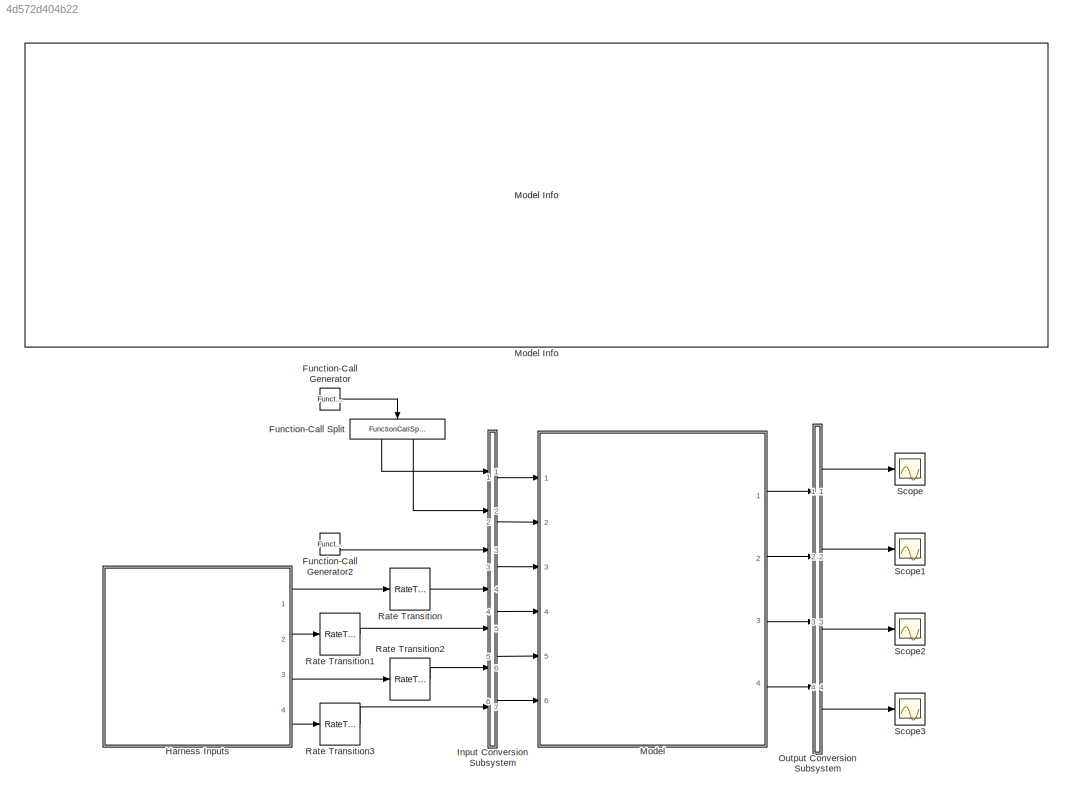
MODEL slx_4d572d404b22
KIND model
CONFIG AbsTol = auto
CONFIG EnableMultiTasking = on
CONFIG FixedStep = 0.1
CONFIG InitFcn = mbd_s32k_as_consistency_checks(bdroot(gcs));
CONFIG MaxStep = auto
CONFIG MinStep = auto
CONFIG RelTol = 1e-3
CONFIG SampleTimeConstraint = Unconstrained
CONFIG Solver = FixedStepDiscrete
CONFIG SolverName = FixedStepDiscrete
CONFIG StartTime = 0.0
CONFIG StopTime = 200
BLOCK [Reference] Function-Call Generator  REF=simulink/Ports &
Subsystems/Function-Call
Generator
  Ports = [0, 1]
  SourceBlock = simulink/Ports &\nSubsystems/Function-Call\nGenerator
  SourceProductBaseCode = SL
  SourceProductName = Simulink
  SourceType = Function-Call Generator
BLOCK [Reference] Function-Call Generator2  REF=simulink/Ports &
Subsystems/Function-Call
Generator
  Ports = [0, 1]
  SourceBlock = simulink/Ports &\nSubsystems/Function-Call\nGenerator
  SourceProductBaseCode = SL
  SourceProductName = Simulink
  SourceType = Function-Call Generator
BLOCK [FunctionCallSplit] Function-Call Split
  IconShape = distinctive
  NumOutputPorts = 2
  Ports = [1, 2]
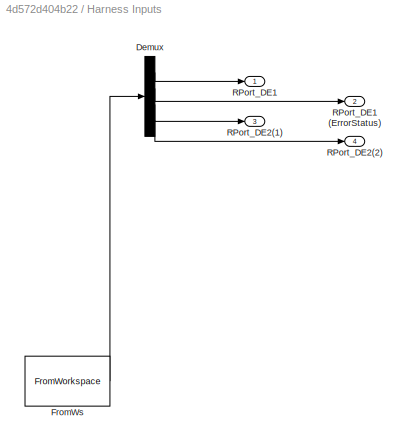
BLOCK [SubSystem] Harness Inputs
  ClipboardFcn = sigbuilder_block('clipboard');
  CloseFcn = sigbuilder_block('close');
  ContinueFcn = sigbuilder_block('continue');
  CopyFcn = sigbuilder_block('copy');
  DeleteFcn = sigbuilder_block('delete');
  LoadFcn = sigbuilder_block('load');
  MaskHideContents = on
  ModelCloseFcn = sigbuilder_block('modelClose');
  NameChangeFcn = sigbuilder_block('namechange');
  OpenFcn = sigbuilder_block('open',[50 50 520 400 ]);
  PauseFcn = sigbuilder_block('pause');
  Ports = [0, 4]
  PreSaveFcn = sigbuilder_block('preSave');
  RequestExecContextInheritance = off
  StartFcn = sigbuilder_block('start');
  StopFcn = sigbuilder_block('stop');
  Tag = STV Subsys
BLOCK [Demux] Harness Inputs/Demux
  Ports = [1, 4]
  Tag = STV Demux
BLOCK [FromWorkspace] Harness Inputs/FromWs
  SampleTime = 0
  Tag = STV FromWs
  VariableName = tuvar
BLOCK [Outport] Harness Inputs/RPort_DE1
  IconDisplay = Port number
  Tag = STV Outport
BLOCK [Outport] Harness Inputs/RPort_DE1 (ErrorStatus)
  IconDisplay = Port number
  Port = 2
  Tag = STV Outport
BLOCK [Outport] Harness Inputs/RPort_DE2(1)
  IconDisplay = Port number
  Port = 3
  Tag = STV Outport
BLOCK [Outport] Harness Inputs/RPort_DE2(2)
  IconDisplay = Port number
  Port = 4
  Tag = STV Outport
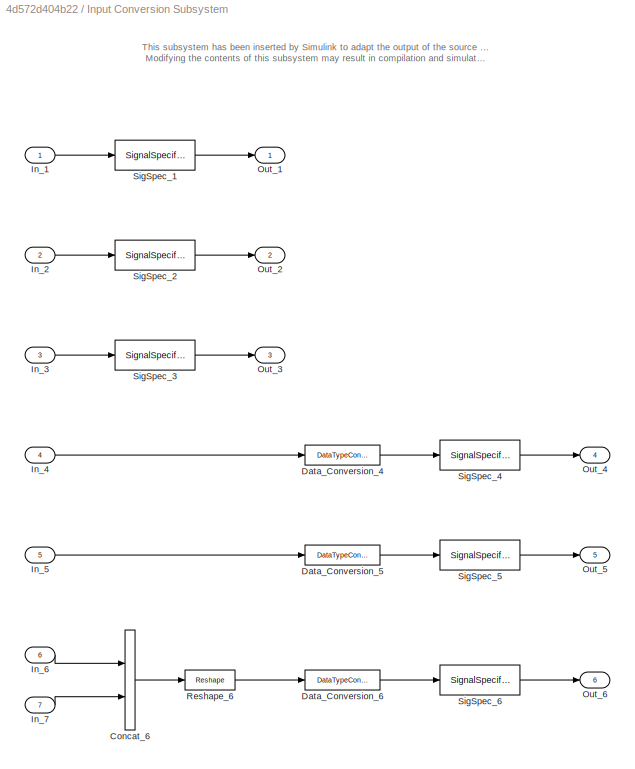
BLOCK [SubSystem] Input Conversion Subsystem
  Permissions = ReadOnly
  PermitHierarchicalResolution = ExplicitOnly
  Ports = [7, 6]
  RequestExecContextInheritance = off
  Tag = _input_conv_ss_
  UserDataPersistent = on
BLOCK [Concatenate] Input Conversion Subsystem/Concat_6
  Ports = [2, 1]
BLOCK [DataTypeConversion] Input Conversion Subsystem/Data_Conversion_4
  OutDataTypeStr = double
BLOCK [DataTypeConversion] Input Conversion Subsystem/Data_Conversion_5
  OutDataTypeStr = uint8
BLOCK [DataTypeConversion] Input Conversion Subsystem/Data_Conversion_6
  OutDataTypeStr = double
BLOCK [Inport] Input Conversion Subsystem/In_1
  IconDisplay = Port number
BLOCK [Inport] Input Conversion Subsystem/In_2
  IconDisplay = Port number
  Port = 2
BLOCK [Inport] Input Conversion Subsystem/In_3
  IconDisplay = Port number
  Port = 3
BLOCK [Inport] Input Conversion Subsystem/In_4
  IconDisplay = Port number
  Port = 4
BLOCK [Inport] Input Conversion Subsystem/In_5
  IconDisplay = Port number
  Port = 5
BLOCK [Inport] Input Conversion Subsystem/In_6
  IconDisplay = Port number
  Port = 6
BLOCK [Inport] Input Conversion Subsystem/In_7
  IconDisplay = Port number
  Port = 7
BLOCK [Outport] Input Conversion Subsystem/Out_1
  IconDisplay = Port number
BLOCK [Outport] Input Conversion Subsystem/Out_2
  IconDisplay = Port number
  Port = 2
BLOCK [Outport] Input Conversion Subsystem/Out_3
  IconDisplay = Port number
  Port = 3
BLOCK [Outport] Input Conversion Subsystem/Out_4
  IconDisplay = Port number
  Port = 4
BLOCK [Outport] Input Conversion Subsystem/Out_5
  IconDisplay = Port number
  Port = 5
BLOCK [Outport] Input Conversion Subsystem/Out_6
  IconDisplay = Port number
  Port = 6
BLOCK [Reshape] Input Conversion Subsystem/Reshape_6
  OutputDimensionality = Customize
  OutputDimensions = [2]
  Ports = [1, 1]
BLOCK [SignalSpecification] Input Conversion Subsystem/SigSpec_1
BLOCK [SignalSpecification] Input Conversion Subsystem/SigSpec_2
BLOCK [SignalSpecification] Input Conversion Subsystem/SigSpec_3
BLOCK [SignalSpecification] Input Conversion Subsystem/SigSpec_4
  Dimensions = [1]
  OutDataTypeStr = double
  SampleTime = [-1 0]
  SignalType = real
  VarSizeSig = No
BLOCK [SignalSpecification] Input Conversion Subsystem/SigSpec_5
  Dimensions = [1]
  OutDataTypeStr = uint8
  SampleTime = [-1 0]
  SignalType = real
  VarSizeSig = No
BLOCK [SignalSpecification] Input Conversion Subsystem/SigSpec_6
  Dimensions = [2]
  OutDataTypeStr = double
  SampleTime = [-1 0]
  SignalType = real
  VarSizeSig = No
BLOCK [ModelReference] Model
  CodeInterface = Top model
  ModelNameDialog = autosar_multirunnables_PIL.slx
  ModelReferenceVersion = 1.383
  Ports = [6, 4]
  ShowModelPeriodicEventPorts = on
BLOCK [Reference] Model Info  REF=simulink/Model-Wide
Utilities/Model Info
  Ports = []
  SourceBlock = simulink/Model-Wide\nUtilities/Model Info
  SourceProductBaseCode = SL
  SourceProductName = Simulink
  SourceType = CMBlock
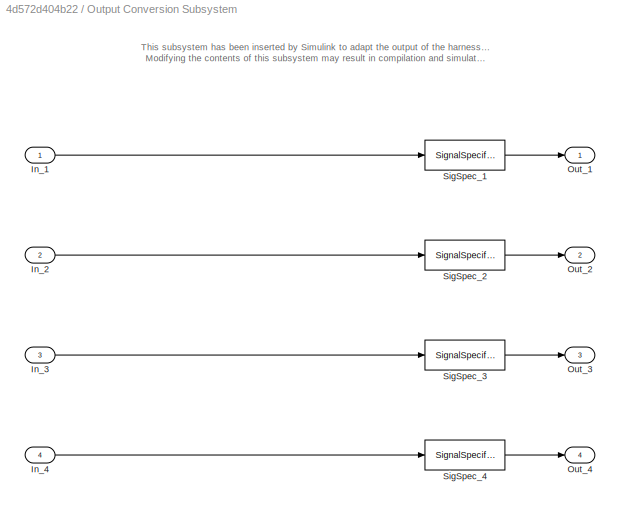
BLOCK [SubSystem] Output Conversion Subsystem
  Permissions = ReadOnly
  PermitHierarchicalResolution = ExplicitOnly
  Ports = [4, 4]
  RequestExecContextInheritance = off
  Tag = _output_conv_ss_
  UserDataPersistent = on
BLOCK [Inport] Output Conversion Subsystem/In_1
  IconDisplay = Port number
BLOCK [Inport] Output Conversion Subsystem/In_2
  IconDisplay = Port number
  Port = 2
BLOCK [Inport] Output Conversion Subsystem/In_3
  IconDisplay = Port number
  Port = 3
BLOCK [Inport] Output Conversion Subsystem/In_4
  IconDisplay = Port number
  Port = 4
BLOCK [Outport] Output Conversion Subsystem/Out_1
  IconDisplay = Port number
BLOCK [Outport] Output Conversion Subsystem/Out_2
  IconDisplay = Port number
  Port = 2
BLOCK [Outport] Output Conversion Subsystem/Out_3
  IconDisplay = Port number
  Port = 3
BLOCK [Outport] Output Conversion Subsystem/Out_4
  IconDisplay = Port number
  Port = 4
BLOCK [SignalSpecification] Output Conversion Subsystem/SigSpec_1
  Dimensions = [1]
  OutDataTypeStr = int8
  SignalType = real
  VarSizeSig = No
BLOCK [SignalSpecification] Output Conversion Subsystem/SigSpec_2
  Dimensions = [1]
  OutDataTypeStr = int8
  SignalType = real
  VarSizeSig = No
BLOCK [SignalSpecification] Output Conversion Subsystem/SigSpec_3
  Dimensions = [2]
  OutDataTypeStr = int8
  SignalType = real
  VarSizeSig = No
BLOCK [SignalSpecification] Output Conversion Subsystem/SigSpec_4
  Dimensions = [1]
  OutDataTypeStr = double
  SignalType = real
  VarSizeSig = No
BLOCK [RateTransition] Rate Transition
BLOCK [RateTransition] Rate Transition1
BLOCK [RateTransition] Rate Transition2
BLOCK [RateTransition] Rate Transition3
BLOCK [Scope] Scope
  Floating = off
  NumInputPorts = 1
  Ports = [1]
  ScopeSpecificationString = Simulink.scopes.TimeScopeBlockCfg('CurrentConfiguration', extmgr.ConfigurationSet(extmgr.Configuration('Core','General UI',true),extmgr.Configuration('Core','Source UI',true),extmgr.Configuration('Sources','WiredSimulink',true,'DataLoggingVariableName','ScopeData1','DataLoggingLimitDataPoints',true,'DataLoggingSaveFormat','Array','DataLoggingDecimation','1','DataLoggingDecimateData',true),extmgr.C...<+1523ch>
BLOCK [Scope] Scope1
  Floating = off
  NumInputPorts = 1
  Ports = [1]
  ScopeSpecificationString = Simulink.scopes.TimeScopeBlockCfg('CurrentConfiguration', extmgr.ConfigurationSet(extmgr.Configuration('Core','General UI',true),extmgr.Configuration('Core','Source UI',true),extmgr.Configuration('Sources','WiredSimulink',true,'DataLoggingVariableName','ScopeData2','DataLoggingLimitDataPoints',true,'DataLoggingSaveFormat','Array','DataLoggingDecimation','1','DataLoggingDecimateData',true),extmgr.C...<+1495ch>
BLOCK [Scope] Scope2
  Floating = off
  NumInputPorts = 1
  Ports = [1]
  ScopeSpecificationString = Simulink.scopes.TimeScopeBlockCfg('CurrentConfiguration', extmgr.ConfigurationSet(extmgr.Configuration('Core','General UI',true),extmgr.Configuration('Core','Source UI',true),extmgr.Configuration('Sources','WiredSimulink',true,'DataLoggingVariableName','ScopeData3','DataLoggingLimitDataPoints',true,'DataLoggingSaveFormat','Array','DataLoggingDecimation','1','DataLoggingDecimateData',true),extmgr.C...<+1531ch>
BLOCK [Scope] Scope3
  Floating = off
  NumInputPorts = 1
  Ports = [1]
  ScopeSpecificationString = Simulink.scopes.TimeScopeBlockCfg('CurrentConfiguration', extmgr.ConfigurationSet(extmgr.Configuration('Core','General UI',true),extmgr.Configuration('Core','Source UI',true),extmgr.Configuration('Sources','WiredSimulink',true,'DataLoggingLimitDataPoints',true,'DataLoggingSaveFormat','Array','DataLoggingDecimation','1','DataLoggingDecimateData',true),extmgr.Configuration('Visuals','Time Domain',tr...<+1474ch>
ANNOTATION Input Conversion Subsystem: This subsystem has been inserted by Simulink to adapt the output of the source blocks to the interface required by the harnessed component. Modifying the contents of this subsystem may result in compilation and simulation failure.
ANNOTATION Output Conversion Subsystem: This subsystem has been inserted by Simulink to adapt the output of the harnessed component to the interface required by the sink blocks. Modifying the contents of this subsystem may result in compilation and simulation failure.
LINE Function-Call Generator2:1 -> Input Conversion Subsystem:3
LINE Function-Call Generator:1 -> Function-Call Split:1
LINE Function-Call Split:1 -> Input Conversion Subsystem:1
LINE Function-Call Split:2 -> Input Conversion Subsystem:2
LINE Harness Inputs/Demux:1 -> Harness Inputs/RPort_DE1:1
LINE Harness Inputs/Demux:2 -> Harness Inputs/RPort_DE1 (ErrorStatus):1
LINE Harness Inputs/Demux:3 -> Harness Inputs/RPort_DE2(1):1
LINE Harness Inputs/Demux:4 -> Harness Inputs/RPort_DE2(2):1
LINE Harness Inputs/FromWs:1 -> Harness Inputs/Demux:1
LINE Harness Inputs:1 -> Rate Transition:1
LINE Harness Inputs:2 -> Rate Transition1:1
LINE Harness Inputs:3 -> Rate Transition2:1
LINE Harness Inputs:4 -> Rate Transition3:1
LINE Input Conversion Subsystem/Concat_6:1 -> Input Conversion Subsystem/Reshape_6:1
LINE Input Conversion Subsystem/Data_Conversion_4:1 -> Input Conversion Subsystem/SigSpec_4:1
LINE Input Conversion Subsystem/Data_Conversion_5:1 -> Input Conversion Subsystem/SigSpec_5:1
LINE Input Conversion Subsystem/Data_Conversion_6:1 -> Input Conversion Subsystem/SigSpec_6:1
LINE Input Conversion Subsystem/In_1:1 -> Input Conversion Subsystem/SigSpec_1:1
LINE Input Conversion Subsystem/In_2:1 -> Input Conversion Subsystem/SigSpec_2:1
LINE Input Conversion Subsystem/In_3:1 -> Input Conversion Subsystem/SigSpec_3:1
LINE Input Conversion Subsystem/In_4:1 -> Input Conversion Subsystem/Data_Conversion_4:1
LINE Input Conversion Subsystem/In_5:1 -> Input Conversion Subsystem/Data_Conversion_5:1
LINE Input Conversion Subsystem/In_6:1 -> Input Conversion Subsystem/Concat_6:1
LINE Input Conversion Subsystem/In_7:1 -> Input Conversion Subsystem/Concat_6:2
LINE Input Conversion Subsystem/Reshape_6:1 -> Input Conversion Subsystem/Data_Conversion_6:1
LINE Input Conversion Subsystem/SigSpec_1:1 -> Input Conversion Subsystem/Out_1:1
LINE Input Conversion Subsystem/SigSpec_2:1 -> Input Conversion Subsystem/Out_2:1
LINE Input Conversion Subsystem/SigSpec_3:1 -> Input Conversion Subsystem/Out_3:1
LINE Input Conversion Subsystem/SigSpec_4:1 -> Input Conversion Subsystem/Out_4:1
LINE Input Conversion Subsystem/SigSpec_5:1 -> Input Conversion Subsystem/Out_5:1
LINE Input Conversion Subsystem/SigSpec_6:1 -> Input Conversion Subsystem/Out_6:1
LINE Input Conversion Subsystem:1 -> Model:1
LINE Input Conversion Subsystem:2 -> Model:2
LINE Input Conversion Subsystem:3 -> Model:3
LINE Input Conversion Subsystem:4 -> Model:4
LINE Input Conversion Subsystem:5 -> Model:5
LINE Input Conversion Subsystem:6 -> Model:6
LINE Model:1 -> Output Conversion Subsystem:1
LINE Model:2 -> Output Conversion Subsystem:2
LINE Model:3 -> Output Conversion Subsystem:3
LINE Model:4 -> Output Conversion Subsystem:4
LINE Output Conversion Subsystem/In_1:1 -> Output Conversion Subsystem/SigSpec_1:1
LINE Output Conversion Subsystem/In_2:1 -> Output Conversion Subsystem/SigSpec_2:1
LINE Output Conversion Subsystem/In_3:1 -> Output Conversion Subsystem/SigSpec_3:1
LINE Output Conversion Subsystem/In_4:1 -> Output Conversion Subsystem/SigSpec_4:1
LINE Output Conversion Subsystem/SigSpec_1:1 -> Output Conversion Subsystem/Out_1:1
LINE Output Conversion Subsystem/SigSpec_2:1 -> Output Conversion Subsystem/Out_2:1
LINE Output Conversion Subsystem/SigSpec_3:1 -> Output Conversion Subsystem/Out_3:1
LINE Output Conversion Subsystem/SigSpec_4:1 -> Output Conversion Subsystem/Out_4:1
LINE Output Conversion Subsystem:1 -> Scope:1
LINE Output Conversion Subsystem:2 -> Scope1:1
LINE Output Conversion Subsystem:3 -> Scope2:1
LINE Output Conversion Subsystem:4 -> Scope3:1
LINE Rate Transition1:1 -> Input Conversion Subsystem:5
LINE Rate Transition2:1 -> Input Conversion Subsystem:6
LINE Rate Transition3:1 -> Input Conversion Subsystem:7
LINE Rate Transition:1 -> Input Conversion Subsystem:4
